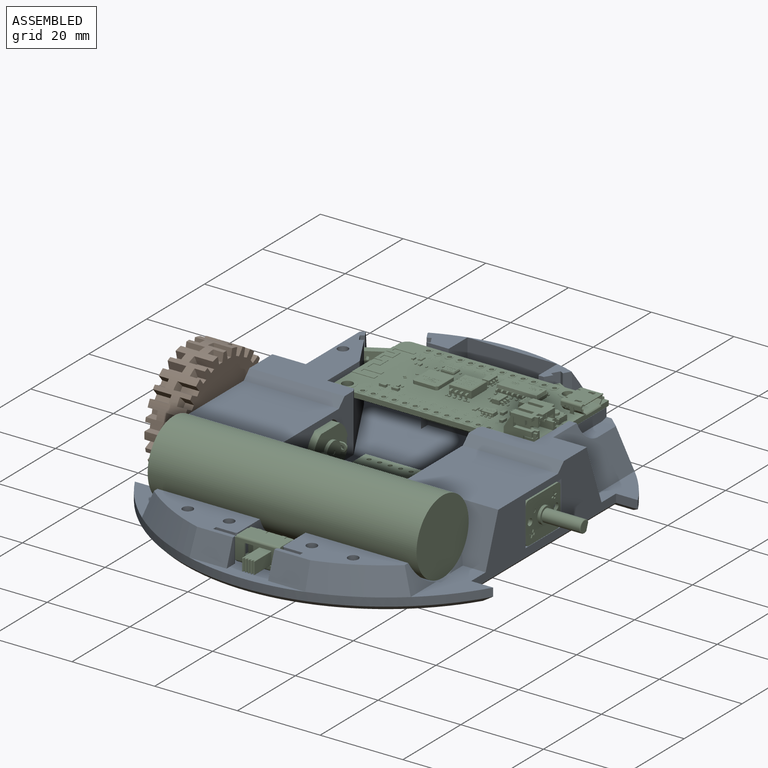
[diagram: assembled view]
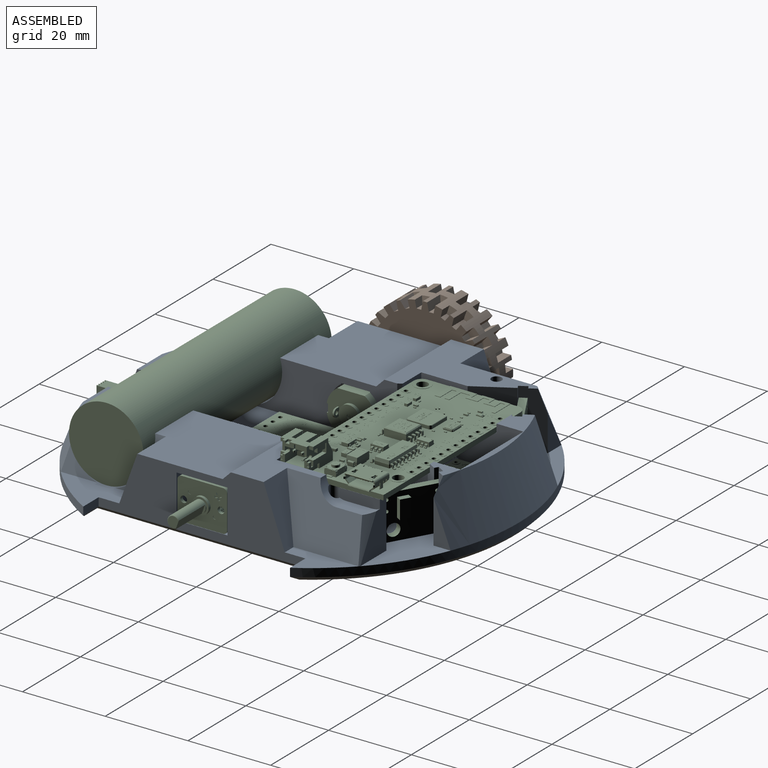
[diagram: assembled view, second angle]
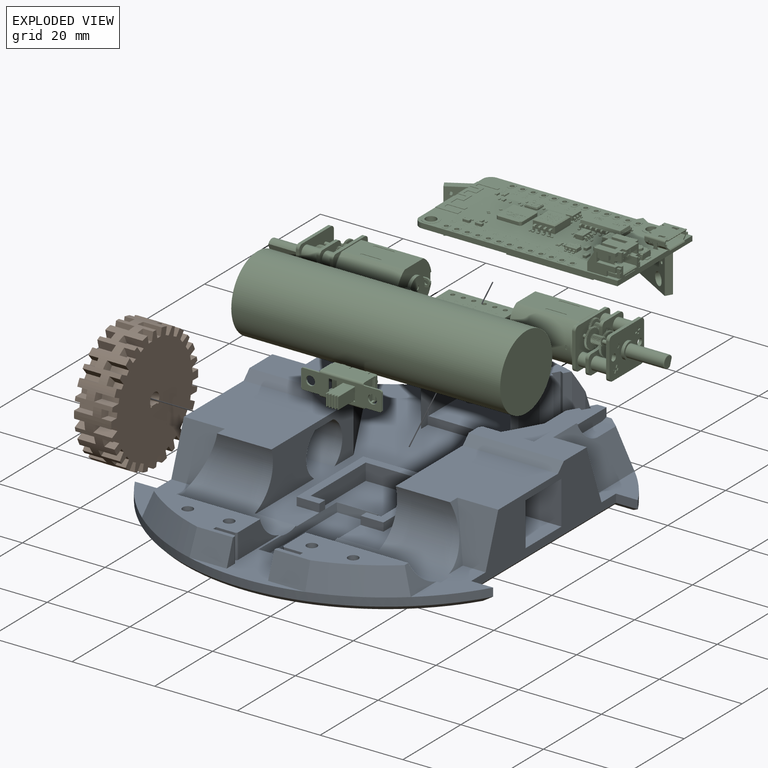
[diagram: exploded view]
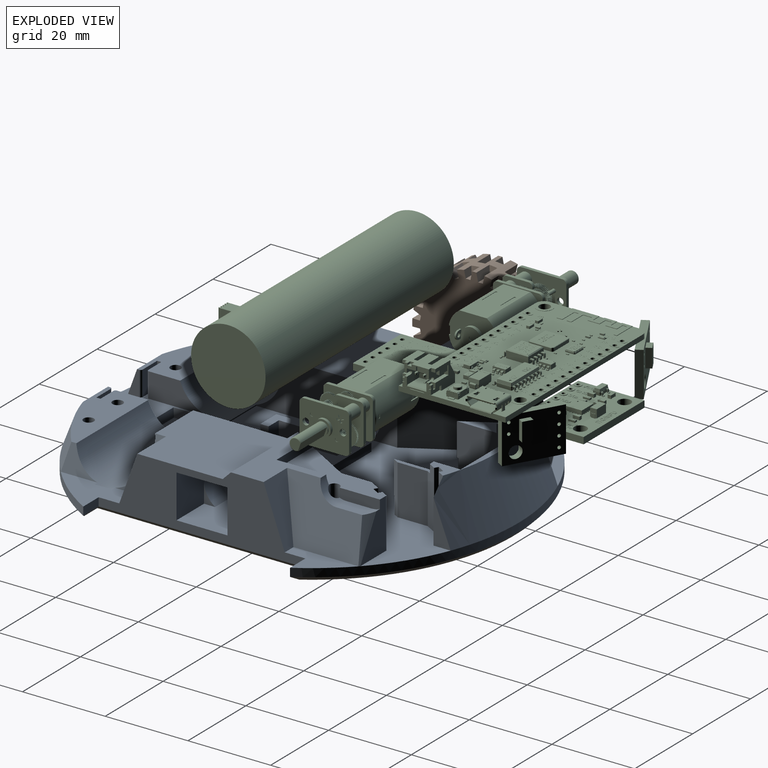
[diagram: exploded view, second angle]
FCSTD DOCUMENT  (FreeCAD 1.0R39319 (Git))
Label: Layout
License: All rights reserved
LicenseURL: https://en.wikipedia.org/wiki/All_rights_reserved
objects: Sketcher::SketchObject×21, PartDesign::Pocket×16, App::Link×10, PartDesign::Pad×5, App::Part×2, PartDesign::Body×2, PartDesign::Chamfer×2, PartDesign::PolarPattern×1, PartDesign::Mirrored×1
note: 117 computed .brp shape members not serialized (recipe doc carries the construction recipe); baked Part::Feature solids carry a one-line shape summary decoded from their .brp
EXTERNAL_REF file=../ReferenceParts/GYUL53L0X.FCStd obj=Part
EXTERNAL_REF file=../ReferenceParts/GY_521.FCStd obj=GY_521_MPU6050
EXTERNAL_REF file=../ReferenceParts/DRV8833.FCStd obj=Modulo_DRV8833_
EXTERNAL_REF file=../ReferenceParts/Lolin32Lite.FCStd obj=Lolin_32_Lite_Board_v45
EXTERNAL_REF file=../ReferenceParts/18650.FCStd obj=Part
EXTERNAL_REF file=../ReferenceParts/N20.FCStd obj=Part
EXTERNAL_REF file=../ReferenceParts/SS12F15 Switch.FCStd obj=SS12F15

FEATURE [App::Link] Link  label="GYUL53LOX"
  LinkPlacement = pos=(-20,35,8) rot=(-0.935113,-0.250563,0.250563;1.63783rad)
  LinkedObject = -> <external ../ReferenceParts/GYUL53L0X.FCStd>#Part
  Placement = pos=(-20,35,8) rot=(-0.935113,-0.250563,0.250563;1.63783rad)
FEATURE [App::Link] Link001  label="GYUL53LOX001"
  LinkPlacement = pos=(20,35,8) rot=(-0.935113,0.250563,-0.250563;1.63783rad)
  LinkedObject = -> <external ../ReferenceParts/GYUL53L0X.FCStd>#Part
  Placement = pos=(20,35,8) rot=(-0.935113,0.250563,-0.250563;1.63783rad)
FEATURE [Sketcher::SketchObject] Sketch  label="Layout001"
  ArcFitTolerance = 1e-06
  AttachmentSupport = -> [XY_Plane001]
  FullyConstrained = true
  MakeInternals = false
  MapMode = 5
  sketch-geometry (3):
    g0: Circle CenterX=0 CenterY=0 CenterZ=0 NormalX=0 NormalY=0 NormalZ=1 AngleXU=0 Radius=50
    g1: LineSegment StartX=0 StartY=0 StartZ=0 EndX=-25 EndY=43.3013 EndZ=0
    g2: LineSegment StartX=0 StartY=0 StartZ=0 EndX=25 EndY=43.3013 EndZ=0
  constraints (8):
    c: Coincident(g0,g-1)
    c: Diameter(g0) = 100
    c: Coincident(g1,g0)
    c: PointOnObject(g1,g0)
    c: Coincident(g2,g0)
    c: PointOnObject(g2,g0)
    c: Angle(g2,g-2) = 0.523599
    c: Angle(g-2,g1) = 0.523599
FEATURE [App::Link] Link002  label="GY_521_MPU6050"
  LinkPlacement = pos=(-1.68016e-07,35.5,4) rot=(0,0,0.999999;0rad)
  LinkedObject = -> <external ../ReferenceParts/GY_521.FCStd>#GY_521_MPU6050
  Placement = pos=(-1.68016e-07,35.5,4) rot=(0,0,0.999999;0rad)
FEATURE [App::Link] Link003  label="Modulo DRV8833 "
  LinkPlacement = pos=(-3.01321e-05,-4.5,4) rot=(0.707107,-0.707107,0;3.14159rad)
  LinkedObject = -> <external ../ReferenceParts/DRV8833.FCStd>#Modulo_DRV8833_
  Placement = pos=(-3.01321e-05,-4.5,4) rot=(0.707107,-0.707107,0;3.14159rad)
FEATURE [App::Link] Link004  label="Lolin 32 Lite Board v45"
  LinkPlacement = pos=(27.9544,10.9999,12) rot=(0,0,1;1.5708rad)
  LinkedObject = -> <external ../ReferenceParts/Lolin32Lite.FCStd>#Lolin_32_Lite_Board_v45
  Placement = pos=(27.9544,10.9999,12) rot=(0,0,1;1.5708rad)
FEATURE [App::Link] Link005  label="18650"
  LinkPlacement = pos=(32.5,-27,9) rot=(0,0,-1;1.5708rad)
  LinkedObject = -> <external ../ReferenceParts/18650.FCStd>#Part
  Placement = pos=(32.5,-27,9) rot=(0,0,-1;1.5708rad)
FEATURE [App::Link] Link006  label="N20"
  LinkPlacement = pos=(-38,-4.52995e-06,5) rot=(0,0,1;1.5708rad)
  LinkedObject = -> <external ../ReferenceParts/N20.FCStd>#Part
  Placement = pos=(-38,-4.52995e-06,5) rot=(0,0,1;1.5708rad)
FEATURE [App::Link] Link007  label="N021"
  LinkPlacement = pos=(38,-4.52995e-06,5) rot=(0,0,-1;1.5708rad)
  LinkedObject = -> <external ../ReferenceParts/N20.FCStd>#Part
  Placement = pos=(38,-4.52995e-06,5) rot=(0,0,-1;1.5708rad)
FEATURE [App::Link] Link008  label="SS12F15"
  LinkPlacement = pos=(-1.18017e-05,-44,3) rot=(1,0,0;1.5708rad)
  LinkedObject = -> <external ../ReferenceParts/SS12F15 Switch.FCStd>#SS12F15
  Placement = pos=(-1.18017e-05,-44,3) rot=(1,0,0;1.5708rad)
FEATURE [App::Part] Part  label="Layout"
  Group = -> [Link,Link001,Link002,Link003,Link004,Link005,Link006,Link007,Link008]
  Origin = -> Origin
FEATURE [Sketcher::SketchObject] Sketch001
  ArcFitTolerance = 1e-06
  AttachmentSupport = -> [XY_Plane001]
  FullyConstrained = true
  MakeInternals = false
  MapMode = 5
  sketch-geometry (1):
    g0: Circle CenterX=0 CenterY=0 CenterZ=0 NormalX=0 NormalY=0 NormalZ=1 AngleXU=0 Radius=50
  constraints (2):
    c: Coincident(g0,g-1)
    c: Diameter(g0) = 100
FEATURE [PartDesign::Pad] Pad
  Direction = (0,0,1)
  Length = 0
  Length2 = 3
  Profile = -> Sketch001
  ReferenceAxis = -> Sketch001 [N_Axis]
  Refine = true
  Suppressed = false
  Type = 4
FEATURE [Sketcher::SketchObject] Sketch002
  ArcFitTolerance = 1e-06
  AttachmentSupport = -> [XY_Plane001]
  FullyConstrained = true
  MakeInternals = false
  MapMode = 5
  sketch-geometry (15):
    g0: LineSegment StartX=-50 StartY=20 StartZ=0 EndX=-50 EndY=-20 EndZ=0
    g1: LineSegment StartX=50 StartY=-20 StartZ=0 EndX=50 EndY=20 EndZ=0
    g2: LineSegment StartX=-50 StartY=-20 StartZ=0 EndX=-32.5 EndY=-20 EndZ=0
    g3: LineSegment StartX=-32.5 StartY=-20 StartZ=0 EndX=-32.5 EndY=-37.9967 EndZ=0
    g4: LineSegment StartX=32.5 StartY=-37.9967 StartZ=0 EndX=32.5 EndY=-20 EndZ=0
    g5: LineSegment StartX=32.5 StartY=-20 StartZ=0 EndX=50 EndY=-20 EndZ=0
    g6: Circle [constr] CenterX=0 CenterY=0 CenterZ=0 NormalX=0 NormalY=0 NormalZ=1 AngleXU=0 Radius=50
    g7: ArcOfCircle CenterX=0 CenterY=0 CenterZ=0 NormalX=0 NormalY=0 NormalZ=1 AngleXU=0 Radius=50 StartAngle=4.0048 EndAngle=4.42859
    g8: ArcOfCircle CenterX=0 CenterY=0 CenterZ=0 NormalX=0 NormalY=0 NormalZ=1 AngleXU=0 Radius=50 StartAngle=4.99618 EndAngle=5.41997
    g9: LineSegment StartX=-14 StartY=-48 StartZ=0 EndX=14 EndY=-48 EndZ=0
    g10: LineSegment StartX=-50 StartY=20 StartZ=0 EndX=-35 EndY=20 EndZ=0
    g11: LineSegment StartX=-35 StartY=20 StartZ=0 EndX=-35 EndY=35.7071 EndZ=0
    g12: LineSegment StartX=50 StartY=20 StartZ=0 EndX=35 EndY=20 EndZ=0
    g13: LineSegment StartX=35 StartY=20 StartZ=0 EndX=35 EndY=35.7071 EndZ=0
    g14: ArcOfCircle CenterX=0 CenterY=0 CenterZ=0 NormalX=0 NormalY=0 NormalZ=1 AngleXU=0 Radius=50 StartAngle=0.795399 EndAngle=2.34619
  constraints (44):
    c: Vertical(g0)
    c: Vertical(g1)
    c: DistanceY(g1,g1) = 40
    c: Distance(g1,g-1) = 20
    c: DistanceX(g0,g1) = 100
    c: DistanceX(g-1,g1) = 50
    c: Coincident(g2,g0)
    c: Horizontal(g2)
    c: Coincident(g3,g2)
    c: Vertical(g3)
    c: Vertical(g4)
    c: Coincident(g5,g4)
    c: Coincident(g5,g1)
    c: Horizontal(g5)
    c: Horizontal(g2,g4)
    c: Equal(g5,g2)
    c: DistanceX(g3,g4) = 65
    c: Horizontal(g4,g3)
    c: Coincident(g6,g-1)
    c: Diameter(g6) = 100
    c: PointOnObject(g3,g6)
    c: Coincident(g7,g6)
    c: Coincident(g7,g3)
    c: Coincident(g8,g6)
    c: Coincident(g8,g4)
    c: Coincident(g9,g7)
    c: Coincident(g9,g8)
    c: Horizontal(g9)
    c: DistanceY(g8,g-1) = 48
    c: Coincident(g10,g0)
    c: Horizontal(g10)
    c: Coincident(g11,g10)
    c: PointOnObject(g11,g6)
    c: Coincident(g12,g1)
    c: Horizontal(g12)
    c: Coincident(g13,g12)
    c: Coincident(g14,g6)
    c: Coincident(g14,g11)
    c: Coincident(g14,g13)
    c: Horizontal(g13,g11)
    c: Vertical(g11)
    c: Vertical(g13)
    c: Horizontal(g10,g12)
    c: DistanceX(g11,g13) = 70
FEATURE [Sketcher::SketchObject] Sketch003
  ArcFitTolerance = 1e-06
  AttachmentSupport = -> [YZ_Plane002]
  FullyConstrained = true
  MakeInternals = false
  MapMode = 5
  Placement = pos=(0,0,0) rot=(0.57735,0.57735,0.57735;2.0944rad)
  sketch-geometry (5):
    g0: Circle CenterX=0 CenterY=0 CenterZ=0 NormalX=0 NormalY=0 NormalZ=1 AngleXU=0 Radius=15
    g1: ArcOfCircle CenterX=0 CenterY=0 CenterZ=0 NormalX=0 NormalY=0 NormalZ=1 AngleXU=0 Radius=1.6 StartAngle=5.68155 EndAngle=10.0264
    g2: ArcOfCircle CenterX=-1.1619 CenterY=-1.1 CenterZ=0 NormalX=0 NormalY=0 NormalZ=1 AngleXU=0 Radius=0.25 StartAngle=2.25063 EndAngle=6.28319
    g3: ArcOfCircle CenterX=1.1619 CenterY=-1.1 CenterZ=0 NormalX=0 NormalY=0 NormalZ=1 AngleXU=0 Radius=0.25 StartAngle=3.14159 EndAngle=7.17415
    g4: LineSegment StartX=-0.911895 StartY=-1.1 StartZ=0 EndX=0.911895 EndY=-1.1 EndZ=0
  constraints (16):
    c: Coincident(g0,g-1)
    c: Diameter(g0) = 30
    c: Coincident(g1,g0)
    c: Coincident(g2,g1)
    c: Coincident(g3,g1)
    c: Coincident(g4,g2)
    c: Coincident(g4,g3)
    c: Horizontal(g4)
    c: Radius(g1) = 1.6
    c: Equal(g3,g2)
    c: Perpendicular(g3,g4)
    c: Perpendicular(g2,g4)
    c: Radius(g3) = 0.25
    c: Horizontal(g1,g1)
    c: PointOnObject(g3,g1)
    c: Distance(g-1,g4) = 1.1
FEATURE [PartDesign::Pad] Pad001
  Direction = (1,0,0)
  Length = 9
  Length2 = 10
  Placement = pos=(0,0,0) rot=(1,1,1;2.0944rad)
  Profile = -> Sketch003
  ReferenceAxis = -> Sketch003 [N_Axis]
  Refine = true
  Suppressed = false
  Type = 0
FEATURE [Sketcher::SketchObject] Sketch004
  ArcFitTolerance = 1e-06
  AttachmentOffset = pos=(-0.5,0,15) rot=(0,0,1;0rad)
  AttachmentSupport = -> [XY_Plane002]
  FullyConstrained = true
  MakeInternals = false
  MapMode = 5
  Placement = pos=(-0.5,0,15) rot=(0,0,1;0rad)
  sketch-geometry (16):
    g0: LineSegment StartX=0 StartY=-0.5 StartZ=0 EndX=0 EndY=-2.5 EndZ=0
    g1: LineSegment StartX=0 StartY=-2.5 StartZ=0 EndX=5 EndY=-2.5 EndZ=0
    g2: LineSegment StartX=5 StartY=-2.5 StartZ=0 EndX=5 EndY=-0.5 EndZ=0
    g3: LineSegment StartX=5 StartY=-0.5 StartZ=0 EndX=0 EndY=-0.5 EndZ=0
    g4: LineSegment StartX=10 StartY=0.5 StartZ=0 EndX=10 EndY=2.5 EndZ=0
    g5: LineSegment StartX=10 StartY=2.5 StartZ=0 EndX=5 EndY=2.5 EndZ=0
    g6: LineSegment StartX=5 StartY=2.5 StartZ=0 EndX=5 EndY=0.5 EndZ=0
    g7: LineSegment StartX=5 StartY=0.5 StartZ=0 EndX=10 EndY=0.5 EndZ=0
    g8: LineSegment StartX=0 StartY=2.5 StartZ=0 EndX=0 EndY=0.5 EndZ=0
    g9: LineSegment StartX=0 StartY=0.5 StartZ=0 EndX=3 EndY=0.5 EndZ=0
    g10: LineSegment StartX=3 StartY=0.5 StartZ=0 EndX=3 EndY=2.5 EndZ=0
    g11: LineSegment StartX=3 StartY=2.5 StartZ=0 EndX=0 EndY=2.5 EndZ=0
    g12: LineSegment StartX=7 StartY=-0.5 StartZ=0 EndX=7 EndY=-2.5 EndZ=0
    g13: LineSegment StartX=7 StartY=-2.5 StartZ=0 EndX=10 EndY=-2.5 EndZ=0
    g14: LineSegment StartX=10 StartY=-2.5 StartZ=0 EndX=10 EndY=-0.5 EndZ=0
    g15: LineSegment StartX=10 StartY=-0.5 StartZ=0 EndX=7 EndY=-0.5 EndZ=0
  constraints (48):
    c: Coincident(g0,g1)
    c: Coincident(g1,g2)
    c: Coincident(g2,g3)
    c: Coincident(g3,g0)
    c: Vertical(g0)
    c: Vertical(g2)
    c: Horizontal(g1)
    c: Horizontal(g3)
    c: PointOnObject(g0,g-2)
    c: Coincident(g4,g5)
    c: Coincident(g5,g6)
    c: Coincident(g6,g7)
    c: Coincident(g7,g4)
    c: Vertical(g4)
    c: Vertical(g6)
    c: Horizontal(g5)
    c: Horizontal(g7)
    c: Distance(g4,g-1) = 0.5
    c: Distance(g2,g-1) = 0.5
    c: DistanceX(g-1,g4) = 10
    c: DistanceX(g5,g5) = 5
    c: Equal(g5,g1)
    c: Equal(g2,g6)
    c: Distance(g2,g2) = 2
    c: Coincident(g8,g9)
    c: Coincident(g9,g10)
    c: Coincident(g10,g11)
    c: Coincident(g11,g8)
    c: Vertical(g8)
    c: Vertical(g10)
    c: Horizontal(g9)
    c: Horizontal(g11)
    c: PointOnObject(g8,g-2)
    c: Coincident(g12,g13)
    c: Coincident(g13,g14)
    c: Coincident(g14,g15)
    c: Coincident(g15,g12)
    c: Vertical(g12)
    c: Vertical(g14)
    c: Horizontal(g13)
    c: Horizontal(g15)
    c: Vertical(g14,g4)
    c: Horizontal(g12,g2)
    c: Horizontal(g12,g1)
    c: Horizontal(g10,g5)
    c: Horizontal(g9,g6)
    c: Equal(g9,g15)
    c: DistanceX(g10,g5) = 2
FEATURE [PartDesign::Pocket] Pocket
  BaseFeature = -> Pad001
  Direction = (0,0,-1)
  Length = 2
  Length2 = 5
  Placement = pos=(0,0,0) rot=(1,1,1;2.0944rad)
  Profile = -> Sketch004
  ReferenceAxis = -> Sketch004 [N_Axis]
  Refine = true
  Suppressed = false
  TaperAngle = -12
  Type = 0
FEATURE [PartDesign::PolarPattern] PolarPattern
  Angle = 360
  Axis = -> X_Axis002
  BaseFeature = -> Pocket
  Mode = 0
  Occurrences = 14
  Offset = 120
  Originals = -> [Pocket]
  Placement = pos=(0,0,0) rot=(1,1,1;2.0944rad)
  Refine = true
  Suppressed = false
  TransformMode = 0
FEATURE [PartDesign::Body] Body001  label="Wheel"
  AllowCompound = false
  Group = -> [Sketch003,Pad001,Sketch004,Pocket,PolarPattern]
  Origin = -> Origin002
  Placement = pos=(39,0,5) rot=(0,0,1;0rad)
  Tip = -> PolarPattern
FEATURE [App::Part] Part001  label="Wheel001"
  Group = -> [Body001]
  Origin = -> Origin003
FEATURE [App::Link] Link009  label="Wheel002"
  LinkPlacement = pos=(0,0,0) rot=(0,0,1;3.14159rad)
  LinkedObject = -> Part001
  Placement = pos=(0,0,0) rot=(0,0,1;3.14159rad)
FEATURE [PartDesign::Pad] Pad002  label="WheelMount"
  BaseFeature = -> Pad
  Direction = (0,0,1)
  Length = 14
  Length2 = 10
  Profile = -> Sketch002
  ReferenceAxis = -> Sketch002 [N_Axis]
  Refine = true
  Suppressed = false
  TaperAngle = -20
  Type = 0
FEATURE [Sketcher::SketchObject] Sketch005
  ArcFitTolerance = 1e-06
  AttachmentSupport = -> [XY_Plane001]
  FullyConstrained = true
  MakeInternals = false
  MapMode = 5
  sketch-geometry (4):
    g0: LineSegment StartX=-60 StartY=25 StartZ=0 EndX=-60 EndY=-25 EndZ=0
    g1: LineSegment StartX=-60 StartY=-25 StartZ=0 EndX=-38 EndY=-25 EndZ=0
    g2: LineSegment StartX=-38 StartY=-25 StartZ=0 EndX=-38 EndY=25 EndZ=0
    g3: LineSegment StartX=-38 StartY=25 StartZ=0 EndX=-60 EndY=25 EndZ=0
  constraints (12):
    c: Coincident(g0,g1)
    c: Coincident(g1,g2)
    c: Coincident(g2,g3)
    c: Coincident(g3,g0)
    c: Vertical(g0)
    c: Vertical(g2)
    c: Horizontal(g1)
    c: Horizontal(g3)
    c: DistanceX(g1,g-1) = 38
    c: DistanceY(g0,g0) = 50
    c: DistanceY(g-1,g0) = 25
    c: DistanceX(g0,g-1) = 60
FEATURE [PartDesign::Pocket] Pocket001  label="WheelCutout"
  BaseFeature = -> Pad002
  Direction = (0,0,-1)
  Length = 5
  Length2 = 5
  Midplane = true
  Profile = -> Sketch005
  ReferenceAxis = -> Sketch005 [N_Axis]
  Refine = true
  Suppressed = false
  Type = 1
FEATURE [Sketcher::SketchObject] Sketch006
  ArcFitTolerance = 1e-06
  AttachmentSupport = -> [Pocket001]
  FullyConstrained = true
  MakeInternals = false
  MapMode = 5
  Placement = pos=(-38,0,0) rot=(0.57735,-0.57735,-0.57735;2.0944rad)
  sketch-geometry (4):
    g0: LineSegment StartX=-6.175 StartY=10.45 StartZ=0 EndX=-6.175 EndY=0 EndZ=0
    g1: LineSegment StartX=-6.175 StartY=0 StartZ=0 EndX=6.175 EndY=0 EndZ=0
    g2: LineSegment StartX=6.175 StartY=0 StartZ=0 EndX=6.175 EndY=10.45 EndZ=0
    g3: LineSegment StartX=6.175 StartY=10.45 StartZ=0 EndX=-6.175 EndY=10.45 EndZ=0
  constraints (11):
    c: Coincident(g0,g1)
    c: Coincident(g1,g2)
    c: Coincident(g2,g3)
    c: Coincident(g3,g0)
    c: Vertical(g0)
    c: Vertical(g2)
    c: Horizontal(g1)
    c: PointOnObject(g1,g-1)
    c: DistanceY(g2,g2) = 10.45
    c: DistanceX(g3,g3) = 12.35
    c: Symmetric(g2,g0,g-2)
FEATURE [PartDesign::Pocket] Pocket002  label="GearboxCutout"
  BaseFeature = -> Pocket001
  Direction = (1,0,0)
  Length = 9.5
  Length2 = 5
  Profile = -> Sketch006
  ReferenceAxis = -> Sketch006 [N_Axis]
  Refine = true
  Suppressed = false
  Type = 0
FEATURE [Sketcher::SketchObject] Sketch007
  ArcFitTolerance = 1e-06
  AttachmentSupport = -> [Pocket002]
  FullyConstrained = true
  MakeInternals = false
  MapMode = 5
  Placement = pos=(-28.5,0,0) rot=(0.57735,-0.57735,-0.57735;2.0944rad)
  sketch-geometry (6):
    g0: ArcOfCircle CenterX=0 CenterY=5.125 CenterZ=0 NormalX=0 NormalY=0 NormalZ=1 AngleXU=0 Radius=6.2 StartAngle=2.16853 EndAngle=4.11465
    g1: ArcOfCircle CenterX=0 CenterY=5.125 CenterZ=0 NormalX=0 NormalY=0 NormalZ=1 AngleXU=0 Radius=6.2 StartAngle=5.31012 EndAngle=7.25625
    g2: LineSegment StartX=-3.48918 StartY=0 StartZ=0 EndX=3.48918 EndY=0 EndZ=0
    g3: LineSegment StartX=-3.48918 StartY=10.25 StartZ=0 EndX=-3.48918 EndY=10.45 EndZ=0
    g4: LineSegment StartX=-3.48918 StartY=10.45 StartZ=0 EndX=3.48918 EndY=10.45 EndZ=0
    g5: LineSegment StartX=3.48918 StartY=10.45 StartZ=0 EndX=3.48918 EndY=10.25 EndZ=0
  constraints (19):
    c: Coincident(g2,g0)
    c: Coincident(g2,g1)
    c: Horizontal(g2)
    c: Equal(g0,g1)
    c: Coincident(g3,g0)
    c: Coincident(g4,g3)
    c: Horizontal(g4)
    c: Coincident(g5,g4)
    c: Coincident(g5,g1)
    c: Vertical(g5)
    c: Vertical(g3)
    c: Equal(g3,g5)
    c: Distance(g5,g5) = 0.2
    c: PointOnObject(g1,g-1)
    c: Radius(g1) = 6.2
    c: Coincident(g0,g1)
    c: Vertical(g1,g1)
    c: PointOnObject(g0,g-2)
    c: DistanceY(g-1,g0) = 5.125
FEATURE [PartDesign::Pocket] Pocket003  label="MotorCutout"
  BaseFeature = -> Pocket002
  Direction = (1,0,0)
  Length = 15
  Length2 = 5
  Profile = -> Sketch007
  ReferenceAxis = -> Sketch007 [N_Axis]
  Refine = true
  Suppressed = false
  Type = 0
FEATURE [PartDesign::Mirrored] Mirrored
  BaseFeature = -> Pocket003
  MirrorPlane = -> Sketch005 [V_Axis]
  Originals = -> [Pocket001,Pocket002,Pocket003]
  Refine = true
  Suppressed = false
  TransformMode = 0
FEATURE [Sketcher::SketchObject] Sketch008
  ArcFitTolerance = 1e-06
  AttachmentSupport = -> [YZ_Plane001]
  FullyConstrained = true
  MakeInternals = false
  MapMode = 5
  Placement = pos=(0,0,0) rot=(0.57735,0.57735,0.57735;2.0944rad)
  sketch-geometry (6):
    g0: Circle [constr] CenterX=-27 CenterY=9 CenterZ=0 NormalX=0 NormalY=0 NormalZ=1 AngleXU=0 Radius=9.25
    g1: ArcOfCircle CenterX=-27 CenterY=9 CenterZ=0 NormalX=0 NormalY=0 NormalZ=1 AngleXU=0 Radius=9.25 StartAngle=3.47189 EndAngle=7.85398
    g2: LineSegment StartX=-27 StartY=18.25 StartZ=0 EndX=-27 EndY=36 EndZ=0
    g3: LineSegment StartX=-27 StartY=36 StartZ=0 EndX=-57 EndY=36 EndZ=0
    g4: LineSegment StartX=-57 StartY=36 StartZ=0 EndX=-57 EndY=6 EndZ=0
    g5: LineSegment StartX=-57 StartY=6 StartZ=0 EndX=-35.75 EndY=6 EndZ=0
  constraints (18):
    c: Diameter(g0) = 18.5
    c: DistanceY(g-1,g0) = 9
    c: DistanceX(g0,g-1) = 27
    c: Coincident(g1,g0)
    c: PointOnObject(g1,g0)
    c: Coincident(g1,g2)
    c: Coincident(g2,g3)
    c: Horizontal(g3)
    c: Coincident(g3,g4)
    c: Vertical(g4)
    c: Coincident(g4,g5)
    c: Coincident(g5,g1)
    c: Horizontal(g5)
    c: DistanceY(g-1,g4) = 6
    c: DistanceY(g4,g4) = 30
    c: DistanceX(g3,g3) = 30
    c: Vertical(g1,g0)
    c: Vertical(g2)
FEATURE [PartDesign::Pocket] Pocket004  label="BatteryCutout"
  BaseFeature = -> Mirrored
  Direction = (-1,0,0)
  Length = 67
  Length2 = 5
  Midplane = true
  Profile = -> Sketch008
  ReferenceAxis = -> Sketch008 [N_Axis]
  Refine = true
  Suppressed = false
  Type = 0
FEATURE [Sketcher::SketchObject] Sketch009
  ArcFitTolerance = 1e-06
  AttachmentSupport = -> [Pocket004]
  FullyConstrained = true
  MakeInternals = false
  MapMode = 5
  Placement = pos=(0,0,6) rot=(0,0,1;0rad)
  sketch-geometry (20):
    g0: LineSegment StartX=-5 StartY=-54.8 StartZ=0 EndX=5 EndY=-54.8 EndZ=0
    g1: LineSegment StartX=5 StartY=-54.8 StartZ=0 EndX=5 EndY=-45.3 EndZ=0
    g2: LineSegment StartX=5.5 StartY=-44.8 StartZ=0 EndX=10.5 EndY=-44.8 EndZ=0
    g3: LineSegment StartX=10.5 StartY=-44.8 StartZ=0 EndX=10.5 EndY=-43.8 EndZ=0
    g4: LineSegment StartX=10.5 StartY=-43.8 StartZ=0 EndX=6 EndY=-43.8 EndZ=0
    g5: LineSegment StartX=5.5 StartY=-43.3 StartZ=0 EndX=5.5 EndY=-28.8 EndZ=0
    g6: LineSegment StartX=5.5 StartY=-28.8 StartZ=0 EndX=-5.5 EndY=-28.8 EndZ=0
    g7: LineSegment StartX=-5.5 StartY=-28.8 StartZ=0 EndX=-5.5 EndY=-43.3 EndZ=0
    g8: LineSegment StartX=-6 StartY=-43.8 StartZ=0 EndX=-10.5 EndY=-43.8 EndZ=0
    g9: LineSegment StartX=-10.5 StartY=-43.8 StartZ=0 EndX=-10.5 EndY=-44.8 EndZ=0
    g10: LineSegment StartX=-10.5 StartY=-44.8 StartZ=0 EndX=-5.5 EndY=-44.8 EndZ=0
    g11: LineSegment StartX=-5 StartY=-45.3 StartZ=0 EndX=-5 EndY=-54.8 EndZ=0
    g12: ArcOfCircle CenterX=-6 CenterY=-43.3 CenterZ=0 NormalX=0 NormalY=0 NormalZ=1 AngleXU=0 Radius=0.5 StartAngle=4.71239 EndAngle=6.28319
    g13: GeomPoint [constr] X=-5.5 Y=-43.8 Z=0
    g14: ArcOfCircle CenterX=6 CenterY=-43.3 CenterZ=0 NormalX=0 NormalY=0 NormalZ=1 AngleXU=0 Radius=0.5 StartAngle=3.14159 EndAngle=4.71239
    g15: GeomPoint [constr] X=5.5 Y=-43.8 Z=0
    g16: ArcOfCircle CenterX=-5.5 CenterY=-45.3 CenterZ=0 NormalX=0 NormalY=0 NormalZ=1 AngleXU=0 Radius=0.5 StartAngle=-5.3e-15 EndAngle=1.5708
    g17: GeomPoint [constr] X=-5 Y=-44.8 Z=0
    g18: ArcOfCircle CenterX=5.5 CenterY=-45.3 CenterZ=0 NormalX=0 NormalY=0 NormalZ=1 AngleXU=0 Radius=0.5 StartAngle=1.5708 EndAngle=3.14159
    g19: GeomPoint [constr] X=5 Y=-44.8 Z=0
  constraints (51):
    c: Coincident(g0,g1)
    c: Vertical(g1)
    c: Horizontal(g2)
    c: Coincident(g2,g3)
    c: Vertical(g3)
    c: Coincident(g3,g4)
    c: Horizontal(g4)
    c: Vertical(g5)
    c: Coincident(g5,g6)
    c: Horizontal(g6)
    c: Coincident(g6,g7)
    c: Horizontal(g8)
    c: Coincident(g8,g9)
    c: Coincident(g9,g10)
    c: Coincident(g11,g0)
    c: Vertical(g11)
    c: Vertical(g9)
    c: Vertical(g7)
    c: DistanceX(g13,g-1) = 5.5
    c: DistanceX(g-1,g15) = 5.5
    c: DistanceX(g8,g3) = 21
    c: Horizontal(g13,g15)
    c: DistanceY(g3,g-1) = 43.8
    c: DistanceY(g3,g3) = 1
    c: Horizontal(g10)
    c: DistanceX(g0,g0) = 10
    c: DistanceY(g1,g19) = 10
    c: Horizontal(g0)
    c: DistanceY(g15,g5) = 15
    c: PointOnObject(g13,g7)
    c: PointOnObject(g13,g8)
    c: Tangent(g7,g12) = 1.5708
    c: Tangent(g8,g12) = 1.5708
    c: PointOnObject(g15,g4)
    c: PointOnObject(g15,g5)
    c: Tangent(g4,g14) = 1.5708
    c: Tangent(g5,g14) = 1.5708
    c: PointOnObject(g17,g10)
    c: PointOnObject(g17,g11)
    c: Tangent(g10,g16) = 1.5708
    c: Tangent(g11,g16) = 1.5708
    c: PointOnObject(g19,g1)
    c: PointOnObject(g19,g2)
    c: Tangent(g1,g18) = 1.5708
    c: Tangent(g2,g18) = 1.5708
    c: Equal(g18,g14)
    c: Equal(g14,g12)
    c: Equal(g12,g16)
    c: Radius(g12) = 0.5
    c: Symmetric(g17,g19,g-2)
    c: Equal(g4,g8)
FEATURE [PartDesign::Pocket] Pocket005  label="SwitchCutout"
  BaseFeature = -> Pocket004
  Direction = (0,0,-1)
  Length = 6
  Length2 = 5
  Profile = -> Sketch009
  ReferenceAxis = -> Sketch009 [N_Axis]
  Refine = true
  Suppressed = false
  Type = 0
FEATURE [Sketcher::SketchObject] Sketch010
  ArcFitTolerance = 1e-06
  AttachmentSupport = -> [XY_Plane001]
  FullyConstrained = true
  MakeInternals = false
  MapMode = 5
  sketch-geometry (4):
    g0: LineSegment StartX=-15 StartY=22 StartZ=0 EndX=-15 EndY=-24 EndZ=0
    g1: LineSegment StartX=-15 StartY=-24 StartZ=0 EndX=15 EndY=-24 EndZ=0
    g2: LineSegment StartX=15 StartY=-24 StartZ=0 EndX=15 EndY=22 EndZ=0
    g3: LineSegment StartX=15 StartY=22 StartZ=0 EndX=-15 EndY=22 EndZ=0
  constraints (12):
    c: Coincident(g0,g1)
    c: Coincident(g1,g2)
    c: Coincident(g2,g3)
    c: Coincident(g3,g0)
    c: Vertical(g0)
    c: Vertical(g2)
    c: Horizontal(g1)
    c: Horizontal(g3)
    c: DistanceX(g3,g3) = 30
    c: DistanceX(g-1,g2) = 15
    c: DistanceY(g-1,g2) = 22
    c: DistanceY(g1,g-1) = 24
FEATURE [PartDesign::Pocket] Pocket006  label="MainWiringAreaCutout"
  BaseFeature = -> Pocket005
  Direction = (0,0,-1)
  Length = 5
  Length2 = 5
  Profile = -> Sketch010
  ReferenceAxis = -> Sketch010 [N_Axis]
  Refine = true
  Reversed = true
  Suppressed = false
  Type = 1
FEATURE [Sketcher::SketchObject] Sketch011
  ArcFitTolerance = 1e-06
  AttachmentSupport = -> [XY_Plane001]
  FullyConstrained = true
  MakeInternals = false
  MapMode = 5
  sketch-geometry (48):
    g0: LineSegment [constr] StartX=-28.8819 StartY=32.125 StartZ=0 EndX=-16.5411 EndY=39.25 EndZ=0
    g1: LineSegment [constr] StartX=-16.5411 StartY=39.25 StartZ=0 EndX=-15.4911 EndY=37.4313 EndZ=0
    g2: LineSegment [constr] StartX=-15.4911 StartY=37.4313 StartZ=0 EndX=-27.8319 EndY=30.3063 EndZ=0
    g3: LineSegment [constr] StartX=-27.8319 StartY=30.3063 StartZ=0 EndX=-28.8819 EndY=32.125 EndZ=0
    g4: LineSegment [constr] StartX=13.3801 StartY=41.075 StartZ=0 EndX=12.3301 EndY=39.2563 EndZ=0
    g5: LineSegment [constr] StartX=12.3301 StartY=39.2563 StartZ=0 EndX=24.671 EndY=32.1313 EndZ=0
    g6: LineSegment [constr] StartX=24.671 StartY=32.1313 StartZ=0 EndX=25.721 EndY=33.95 EndZ=0
    g7: LineSegment [constr] StartX=25.721 StartY=33.95 StartZ=0 EndX=13.3801 EndY=41.075 EndZ=0
    g8: GeomPoint [constr] X=21.131 Y=36.6 Z=0
    g9: LineSegment [constr] StartX=0 StartY=0 StartZ=0 EndX=21.131 EndY=36.6 EndZ=0
    g10: LineSegment [constr] StartX=-21.131 StartY=36.6 StartZ=0 EndX=0 EndY=0 EndZ=0
    g11: LineSegment StartX=-28.0159 StartY=32.625 StartZ=0 EndX=-29.9645 EndY=36 EndZ=0
    g12: LineSegment StartX=-29.9645 StartY=36 StartZ=0 EndX=-50 EndY=36 EndZ=0
    g13: LineSegment StartX=-50 StartY=36 StartZ=0 EndX=-50 EndY=50 EndZ=0
    g14: LineSegment StartX=-50 StartY=50 StartZ=0 EndX=-18.5 EndY=50 EndZ=0
    g15: LineSegment StartX=-17.4071 StartY=38.75 StartZ=0 EndX=-16.5411 EndY=39.25 EndZ=0
    g16: LineSegment StartX=-16.5411 StartY=39.25 StartZ=0 EndX=-15.4911 EndY=37.4313 EndZ=0
    g17: LineSegment StartX=-15.4911 StartY=37.4313 StartZ=0 EndX=-16.3571 EndY=36.9313 EndZ=0
    g18: LineSegment StartX=-16.3571 StartY=36.9313 StartZ=0 EndX=-14.8571 EndY=34.3333 EndZ=0
    g19: LineSegment StartX=-25.4659 StartY=28.2083 StartZ=0 EndX=-26.9659 EndY=30.8063 EndZ=0
    g20: LineSegment StartX=-26.9659 StartY=30.8063 StartZ=0 EndX=-27.8319 EndY=30.3063 EndZ=0
    g21: LineSegment StartX=-27.8319 StartY=30.3063 StartZ=0 EndX=-28.8819 EndY=32.125 EndZ=0
    g22: LineSegment StartX=-28.8819 StartY=32.125 StartZ=0 EndX=-28.0159 EndY=32.625 EndZ=0
    g23: LineSegment StartX=18.5 StartY=50 StartZ=0 EndX=50 EndY=50 EndZ=0
    g24: LineSegment StartX=50 StartY=50 StartZ=0 EndX=50 EndY=36 EndZ=0
    g25: LineSegment StartX=24.8549 StartY=34.45 StartZ=0 EndX=25.721 EndY=33.95 EndZ=0
    g26: LineSegment StartX=25.721 StartY=33.95 StartZ=0 EndX=24.671 EndY=32.1313 EndZ=0
    g27: LineSegment StartX=24.671 StartY=32.1313 StartZ=0 EndX=23.8049 EndY=32.6313 EndZ=0
    g28: LineSegment StartX=23.8049 StartY=32.6313 StartZ=0 EndX=22.3049 EndY=30.0333 EndZ=0
    g29: LineSegment StartX=11.6961 StartY=36.1583 StartZ=0 EndX=13.1961 EndY=38.7563 EndZ=0
    g30: LineSegment StartX=13.1961 StartY=38.7563 StartZ=0 EndX=12.3301 EndY=39.2563 EndZ=0
    g31: LineSegment StartX=12.3301 StartY=39.2563 StartZ=0 EndX=13.3801 EndY=41.075 EndZ=0
    g32: LineSegment StartX=24.8549 StartY=34.45 StartZ=0 EndX=25.7498 EndY=36 EndZ=0
    g33: LineSegment StartX=25.7498 StartY=36 StartZ=0 EndX=50 EndY=36 EndZ=0
    g34: LineSegment StartX=-17.4071 StartY=38.75 StartZ=0 EndX=-18.5 EndY=40.6429 EndZ=0
    g35: LineSegment StartX=-18.5 StartY=50 StartZ=0 EndX=-18.5 EndY=40.6429 EndZ=0
    g36: LineSegment StartX=18.5 StartY=50 StartZ=0 EndX=18.5 EndY=42.3071 EndZ=0
    g37: LineSegment StartX=14.2461 StartY=40.575 StartZ=0 EndX=13.3801 EndY=41.075 EndZ=0
    g38: LineSegment StartX=14.2461 StartY=40.575 StartZ=0 EndX=15.2461 EndY=42.3071 EndZ=0
    g39: LineSegment StartX=15.2461 StartY=42.3071 StartZ=0 EndX=18.5 EndY=42.3071 EndZ=0
    g40: LineSegment StartX=-25.4659 StartY=28.2083 StartZ=0 EndX=-14.9534 EndY=10 EndZ=0
    g41: LineSegment StartX=-14.9534 StartY=10 StartZ=0 EndX=14.9534 EndY=10 EndZ=0
    g42: LineSegment StartX=14.9534 StartY=10 StartZ=0 EndX=22.3049 EndY=22.7333 EndZ=0
    g43: LineSegment StartX=22.3049 StartY=22.7333 StartZ=0 EndX=22.3049 EndY=30.0333 EndZ=0
    g44: LineSegment StartX=11.6961 StartY=36.1583 StartZ=0 EndX=11.6961 EndY=28.8583 EndZ=0
    g45: LineSegment StartX=11.6961 StartY=28.8583 StartZ=0 EndX=3.69504 EndY=15 EndZ=0
    g46: LineSegment StartX=3.69504 StartY=15 StartZ=0 EndX=-3.69504 EndY=15 EndZ=0
    g47: LineSegment StartX=-14.8571 StartY=34.3333 StartZ=0 EndX=-3.69504 EndY=15 EndZ=0
  constraints (132):
    c: Coincident(g0,g1)
    c: Coincident(g1,g2)
    c: Coincident(g2,g3)
    c: Coincident(g3,g0)
    c: Coincident(g4,g5)
    c: Coincident(g5,g6)
    c: Coincident(g6,g7)
    c: Coincident(g7,g4)
    c: Equal(g2,g0)
    c: Equal(g0,g5)
    c: Equal(g5,g7)
    c: Equal(g6,g4)
    c: Equal(g4,g1)
    c: Equal(g1,g3)
    c: Perpendicular(g2,g1)
    c: Perpendicular(g5,g6)
    c: Distance(g5,g5) = 14.25
    c: Distance(g6,g6) = 2.1
    c: PointOnObject(g8,g7)
    c: Distance(g8,g6) = 5.3
    c: Coincident(g9,g-1)
    c: Coincident(g9,g8)
    c: Perpendicular(g9,g7)
    c: Angle(g-1,g9) = 1.0472
    c: DistanceY(g-1,g8) = 36.6
    c: PointOnObject(g10,g0)
    c: Coincident(g10,g9)
    c: Distance(g10,g0) = 5.3
    c: Angle(g10,g-1) = 1.0472
    c: Horizontal(g10,g8)
    c: Perpendicular(g10,g0)
    c: PointOnObject(g11,g0)
    c: Coincident(g11,g12)
    c: Horizontal(g12)
    c: Coincident(g12,g13)
    c: Vertical(g13)
    c: Coincident(g13,g14)
    c: Horizontal(g14)
    c: PointOnObject(g15,g0)
    c: Coincident(g15,g0)
    c: Coincident(g15,g16)
    c: Coincident(g16,g1)
    c: Coincident(g16,g17)
    c: PointOnObject(g17,g2)
    c: Coincident(g17,g18)
    c: PointOnObject(g19,g2)
    c: Coincident(g19,g20)
    c: Coincident(g20,g2)
    c: Coincident(g20,g21)
    c: Coincident(g21,g0)
    c: Coincident(g21,g22)
    c: Coincident(g22,g11)
    c: Horizontal(g23)
    c: Coincident(g23,g24)
    c: PointOnObject(g25,g7)
    c: Coincident(g25,g6)
    c: Coincident(g25,g26)
    c: Coincident(g26,g5)
    c: Coincident(g26,g27)
    c: PointOnObject(g27,g5)
    c: Coincident(g27,g28)
    c: PointOnObject(g29,g5)
    c: Coincident(g29,g30)
    c: Coincident(g30,g4)
    c: Coincident(g30,g31)
    c: Coincident(g31,g4)
    c: Equal(g29,g28)
    c: Equal(g28,g18)
    c: Equal(g18,g19)
    c: Perpendicular(g30,g29)
    c: Perpendicular(g27,g28)
    c: Distance(g27,g27) = 1
    c: Coincident(g32,g25)
    c: Coincident(g33,g32)
    c: Coincident(g33,g24)
    c: Horizontal(g33)
    c: Parallel(g32,g28)
    c: Equal(g25,g27)
    c: Distance(g29,g29) = 3
    c: Equal(g17,g15)
    c: Equal(g15,g22)
    c: Equal(g22,g20)
    c: Perpendicular(g17,g18)
    c: Perpendicular(g2,g19)
    c: Vertical(g24)
    c: Equal(g23,g14)
    c: DistanceX(g13,g23) = 100
    c: DistanceY(g-1,g23) = 50
    c: Equal(g24,g13)
    c: Coincident(g34,g15)
    c: Coincident(g35,g14)
    c: Coincident(g35,g34)
    c: Vertical(g35)
    c: Symmetric(g23,g14,g-2)
    c: DistanceX(g14,g23) = 37
    c: DistanceY(g-1,g24) = 36
    c: Equal(g30,g27)
    c: Equal(g30,g17)
    c: Perpendicular(g15,g34)
    c: Coincident(g36,g23)
    c: Vertical(g36)
    c: PointOnObject(g37,g7)
    c: Coincident(g37,g4)
    c: Equal(g37,g30)
    c: Coincident(g38,g37)
    c: Coincident(g39,g38)
    c: Coincident(g39,g36)
    c: Perpendicular(g37,g38)
    c: Distance(g38,g38) = 2
    c: Perpendicular(g36,g39)
    c: Perpendicular(g22,g11)
    c: Coincident(g40,g19)
    c: Coincident(g41,g40)
    c: Symmetric(g41,g40,g-2)
    c: Parallel(g40,g19)
    c: Coincident(g42,g41)
    c: Coincident(g43,g42)
    c: Coincident(g43,g28)
    c: Vertical(g43)
    c: DistanceY(g-1,g41) = 10
    c: Parallel(g42,g29)
    c: Coincident(g44,g29)
    c: Vertical(g44)
    c: Coincident(g45,g44)
    c: Coincident(g46,g45)
    c: Horizontal(g46)
    c: Coincident(g47,g18)
    c: Coincident(g47,g46)
    c: Parallel(g47,g18)
    c: Parallel(g45,g29)
    c: Equal(g44,g43)
    c: DistanceY(g-1,g45) = 15
FEATURE [PartDesign::Pocket] Pocket007  label="TOFSensorCutouts"
  BaseFeature = -> Pocket006
  Direction = (0,0,-1)
  Length = 5
  Length2 = 5
  Profile = -> Sketch011
  ReferenceAxis = -> Sketch011 [N_Axis]
  Refine = true
  Reversed = true
  Suppressed = false
  Type = 1
FEATURE [Sketcher::SketchObject] Sketch012
  ArcFitTolerance = 1e-06
  AttachmentOffset = pos=(0,0,2) rot=(0,0,1;0rad)
  AttachmentSupport = -> [XY_Plane001]
  FullyConstrained = true
  MakeInternals = false
  MapMode = 5
  Placement = pos=(0,0,2) rot=(0,0,1;0rad)
  sketch-geometry (4):
    g0: LineSegment StartX=-10.85 StartY=43.5 StartZ=0 EndX=-10.85 EndY=27.2 EndZ=0
    g1: LineSegment StartX=-10.85 StartY=27.2 StartZ=0 EndX=10.85 EndY=27.2 EndZ=0
    g2: LineSegment StartX=10.85 StartY=27.2 StartZ=0 EndX=10.85 EndY=43.5 EndZ=0
    g3: LineSegment StartX=10.85 StartY=43.5 StartZ=0 EndX=-10.85 EndY=43.5 EndZ=0
  constraints (11):
    c: Coincident(g0,g1)
    c: Coincident(g1,g2)
    c: Coincident(g2,g3)
    c: Coincident(g3,g0)
    c: Vertical(g0)
    c: Vertical(g2)
    c: Horizontal(g1)
    c: DistanceX(g1,g1) = 21.7
    c: DistanceY(g0,g0) = 16.3
    c: DistanceY(g-1,g0) = 43.5
    c: Symmetric(g0,g2,g-2)
FEATURE [PartDesign::Pocket] Pocket008  label="IMUCutout"
  BaseFeature = -> Pocket007
  Direction = (0,0,-1)
  Length = 5
  Length2 = 5
  Profile = -> Sketch012
  ReferenceAxis = -> Sketch012 [N_Axis]
  Refine = true
  Reversed = true
  Suppressed = false
  Type = 1
FEATURE [Sketcher::SketchObject] Sketch013
  ArcFitTolerance = 1e-06
  AttachmentSupport = -> [Pocket008]
  FullyConstrained = true
  MakeInternals = false
  MapMode = 5
  Placement = pos=(0,0,2) rot=(0,0,1;0rad)
  sketch-geometry (4):
    g0: LineSegment StartX=-11 StartY=30 StartZ=0 EndX=-11 EndY=20 EndZ=0
    g1: LineSegment StartX=-11 StartY=20 StartZ=0 EndX=11 EndY=20 EndZ=0
    g2: LineSegment StartX=11 StartY=20 StartZ=0 EndX=11 EndY=30 EndZ=0
    g3: LineSegment StartX=11 StartY=30 StartZ=0 EndX=-11 EndY=30 EndZ=0
  constraints (12):
    c: Coincident(g0,g1)
    c: Coincident(g1,g2)
    c: Coincident(g2,g3)
    c: Coincident(g3,g0)
    c: Vertical(g0)
    c: Vertical(g2)
    c: Horizontal(g1)
    c: Horizontal(g3)
    c: Distance(g0,g0) = 10
    c: DistanceX(g0,g2) = 22
    c: Distance(g0,g-2) = 11
    c: DistanceY(g-1,g0) = 30
FEATURE [PartDesign::Pocket] Pocket009  label="IMUWireCutout"
  BaseFeature = -> Pocket008
  Direction = (0,0,-1)
  Length = 2
  Length2 = 2
  Profile = -> Sketch013
  ReferenceAxis = -> Sketch013 [N_Axis]
  Refine = true
  Suppressed = false
  Type = 4
FEATURE [Sketcher::SketchObject] Sketch014
  ArcFitTolerance = 1e-06
  AttachmentSupport = -> [XY_Plane001]
  FullyConstrained = true
  MakeInternals = false
  MapMode = 5
  sketch-geometry (8):
    g0: LineSegment StartX=-8.5 StartY=5 StartZ=0 EndX=-8.5 EndY=-14 EndZ=0
    g1: LineSegment StartX=-8.5 StartY=-14 StartZ=0 EndX=8.5 EndY=-14 EndZ=0
    g2: LineSegment StartX=8.5 StartY=-14 StartZ=0 EndX=8.5 EndY=5 EndZ=0
    g3: LineSegment StartX=8.5 StartY=5 StartZ=0 EndX=-8.5 EndY=5 EndZ=0
    g4: LineSegment StartX=-10.5 StartY=7 StartZ=0 EndX=-10.5 EndY=-16 EndZ=0
    g5: LineSegment StartX=-10.5 StartY=-16 StartZ=0 EndX=10.5 EndY=-16 EndZ=0
    g6: LineSegment StartX=10.5 StartY=-16 StartZ=0 EndX=10.5 EndY=7 EndZ=0
    g7: LineSegment StartX=10.5 StartY=7 StartZ=0 EndX=-10.5 EndY=7 EndZ=0
  constraints (23):
    c: Coincident(g0,g1)
    c: Coincident(g1,g2)
    c: Coincident(g2,g3)
    c: Coincident(g3,g0)
    c: Vertical(g0)
    c: Vertical(g2)
    c: Horizontal(g1)
    c: Coincident(g4,g5)
    c: Coincident(g5,g6)
    c: Coincident(g6,g7)
    c: Coincident(g7,g4)
    c: Vertical(g4)
    c: Vertical(g6)
    c: Horizontal(g5)
    c: DistanceX(g4,g0) = 2
    c: DistanceY(g2,g6) = 2
    c: Distance(g1,g5) = 2
    c: Distance(g6,g2) = 2
    c: DistanceX(g3,g3) = 17
    c: DistanceY(g2,g2) = 19
    c: Symmetric(g0,g2,g-2)
    c: DistanceY(g-1,g0) = 5
    c: Horizontal(g7)
FEATURE [PartDesign::Pad] Pad003  label="MotorDriverRetainingRing"
  BaseFeature = -> Pocket009
  Direction = (0,0,1)
  Length = 2
  Length2 = 10
  Profile = -> Sketch014
  ReferenceAxis = -> Sketch014 [N_Axis]
  Refine = true
  Suppressed = false
  Type = 0
FEATURE [Sketcher::SketchObject] Sketch015
  ArcFitTolerance = 1e-06
  AttachmentSupport = -> [XY_Plane001]
  FullyConstrained = true
  MakeInternals = false
  MapMode = 5
  sketch-geometry (4):
    g0: LineSegment StartX=5 StartY=-37 StartZ=0 EndX=5 EndY=-10 EndZ=0
    g1: LineSegment StartX=5 StartY=-10 StartZ=0 EndX=-5 EndY=-10 EndZ=0
    g2: LineSegment StartX=-5 StartY=-10 StartZ=0 EndX=-5 EndY=-37 EndZ=0
    g3: LineSegment StartX=-5 StartY=-37 StartZ=0 EndX=5 EndY=-37 EndZ=0
  constraints (12):
    c: Coincident(g0,g1)
    c: Coincident(g1,g2)
    c: Coincident(g2,g3)
    c: Coincident(g3,g0)
    c: Vertical(g0)
    c: Vertical(g2)
    c: Horizontal(g1)
    c: Horizontal(g3)
    c: DistanceX(g1,g1) = 10
    c: DistanceX(g1,g-1) = 5
    c: DistanceY(g1,g-1) = 10
    c: DistanceY(g2,g-1) = 37
FEATURE [PartDesign::Pocket] Pocket010  label="SwitchWireCutout"
  BaseFeature = -> Pad003
  Direction = (0,0,-1)
  Length = 2
  Length2 = 5
  Profile = -> Sketch015
  ReferenceAxis = -> Sketch015 [N_Axis]
  Refine = true
  Suppressed = false
  TaperAngle = -10
  Type = 4
FEATURE [Sketcher::SketchObject] Sketch016
  ArcFitTolerance = 1e-06
  AttachmentSupport = -> [XY_Plane001]
  FullyConstrained = true
  MakeInternals = false
  MapMode = 5
  sketch-geometry (9):
    g0: Circle CenterX=-28 CenterY=25 CenterZ=0 NormalX=0 NormalY=0 NormalZ=1 AngleXU=0 Radius=1.25
    g1: Circle CenterX=-20 CenterY=-40 CenterZ=0 NormalX=0 NormalY=0 NormalZ=1 AngleXU=0 Radius=1.25
    g2: Circle CenterX=28 CenterY=25 CenterZ=0 NormalX=0 NormalY=0 NormalZ=1 AngleXU=0 Radius=1.25
    g3: Circle CenterX=20 CenterY=-40 CenterZ=0 NormalX=0 NormalY=0 NormalZ=1 AngleXU=0 Radius=1.25
    g4: LineSegment [constr] StartX=-28 StartY=25 StartZ=0 EndX=28 EndY=25 EndZ=0
    g5: LineSegment [constr] StartX=-20 StartY=-40 StartZ=0 EndX=20 EndY=-40 EndZ=0
    g6: Circle CenterX=-10 CenterY=-40 CenterZ=0 NormalX=0 NormalY=0 NormalZ=1 AngleXU=0 Radius=1.25
    g7: Circle CenterX=10 CenterY=-40 CenterZ=0 NormalX=0 NormalY=0 NormalZ=1 AngleXU=0 Radius=1.25
    g8: LineSegment [constr] StartX=-10 StartY=-40 StartZ=0 EndX=10 EndY=-40 EndZ=0
  constraints (21):
    c: Distance(g0,g-2) = 28
    c: Diameter(g0) = 2.5
    c: DistanceX(g1,g-1) = 20
    c: DistanceY(g1,g-1) = 40
    c: Equal(g1,g0)
    c: DistanceY(g-1,g0) = 25
    c: Coincident(g4,g0)
    c: Coincident(g4,g2)
    c: Coincident(g5,g1)
    c: Coincident(g5,g3)
    c: Symmetric(g3,g1,g-2)
    c: Symmetric(g2,g0,g-2)
    c: Equal(g2,g3)
    c: Equal(g3,g1)
    c: Equal(g7,g6)
    c: Equal(g6,g1)
    c: Coincident(g8,g6)
    c: Symmetric(g8,g6,g-2)
    c: Coincident(g7,g8)
    c: PointOnObject(g7,g5)
    c: DistanceX(g6,g7) = 20
FEATURE [Sketcher::SketchObject] Sketch017
  ArcFitTolerance = 1e-06
  AttachmentOffset = pos=(0,0,12) rot=(0,0,1;0rad)
  AttachmentSupport = -> [XY_Plane001]
  FullyConstrained = true
  MakeInternals = false
  MapMode = 5
  Placement = pos=(0,0,12) rot=(0,0,1;0rad)
  sketch-geometry (4):
    g0: LineSegment StartX=-22 StartY=37 StartZ=0 EndX=-22 EndY=11 EndZ=0
    g1: LineSegment StartX=-22 StartY=11 StartZ=0 EndX=28 EndY=11 EndZ=0
    g2: LineSegment StartX=28 StartY=11 StartZ=0 EndX=28 EndY=37 EndZ=0
    g3: LineSegment StartX=28 StartY=37 StartZ=0 EndX=-22 EndY=37 EndZ=0
  constraints (12):
    c: Coincident(g0,g1)
    c: Coincident(g1,g2)
    c: Coincident(g2,g3)
    c: Coincident(g3,g0)
    c: Vertical(g0)
    c: Vertical(g2)
    c: Horizontal(g1)
    c: Horizontal(g3)
    c: DistanceX(g3,g3) = 50
    c: DistanceX(g0,g-1) = 22
    c: Distance(g0,g1) = 26
    c: DistanceY(g-1,g2) = 37
FEATURE [Sketcher::SketchObject] Sketch019
  ArcFitTolerance = 1e-06
  AttachmentSupport = -> [YZ_Plane001]
  FullyConstrained = true
  MakeInternals = false
  MapMode = 5
  Placement = pos=(0,0,0) rot=(0.57735,0.57735,0.57735;2.0944rad)
  sketch-geometry (4):
    g0: LineSegment StartX=-35 StartY=22 StartZ=0 EndX=-35 EndY=12 EndZ=0
    g1: LineSegment StartX=-35 StartY=12 StartZ=0 EndX=5 EndY=12 EndZ=0
    g2: LineSegment StartX=5 StartY=12 StartZ=0 EndX=15 EndY=22 EndZ=0
    g3: LineSegment StartX=15 StartY=22 StartZ=0 EndX=-35 EndY=22 EndZ=0
  constraints (12):
    c: Coincident(g0,g1)
    c: Coincident(g1,g2)
    c: Coincident(g2,g3)
    c: Coincident(g3,g0)
    c: Vertical(g0)
    c: Horizontal(g1)
    c: Horizontal(g3)
    c: DistanceY(g-1,g0) = 12
    c: DistanceY(g0,g0) = 10
    c: DistanceX(g-1,g1) = 5
    c: DistanceX(g3,g3) = 50
    c: Angle(g2,g1) = 2.35619
FEATURE [Sketcher::SketchObject] Sketch020
  ArcFitTolerance = 1e-06
  AttachmentOffset = pos=(0,0,28) rot=(0,0,1;0rad)
  AttachmentSupport = -> [YZ_Plane001]
  FullyConstrained = true
  MakeInternals = false
  MapMode = 5
  Placement = pos=(28,0,0) rot=(0.57735,0.57735,0.57735;2.0944rad)
  sketch-geometry (4):
    g0: ArcOfCircle CenterX=28 CenterY=14.5 CenterZ=0 NormalX=0 NormalY=0 NormalZ=1 AngleXU=0 Radius=5 StartAngle=1.5708 EndAngle=4.71239
    g1: ArcOfCircle CenterX=34 CenterY=14.5 CenterZ=0 NormalX=0 NormalY=0 NormalZ=1 AngleXU=0 Radius=5 StartAngle=4.71239 EndAngle=7.85398
    g2: LineSegment StartX=28 StartY=19.5 StartZ=0 EndX=34 EndY=19.5 EndZ=0
    g3: LineSegment StartX=28 StartY=9.5 StartZ=0 EndX=34 EndY=9.5 EndZ=0
  constraints (10):
    c: Tangent(g0,g2) = 1.5708
    c: Tangent(g0,g3) = -1.5708
    c: Tangent(g1,g2) = 1.5708
    c: Tangent(g1,g3) = -1.5708
    c: Equal(g0,g1)
    c: Horizontal(g3)
    c: Radius(g1) = 5
    c: DistanceX(g-1,g0) = 28
    c: DistanceY(g-1,g0) = 14.5
    c: DistanceX(g2,g2) = 6
FEATURE [PartDesign::Pocket] Pocket017
  BaseFeature = -> Pocket010
  Direction = (0,0,-1)
  Length = 2
  Length2 = 5
  Profile = -> Pocket010 [Face103]
  Refine = true
  Suppressed = false
  Type = 0
FEATURE [PartDesign::Chamfer] Chamfer
  Angle = 45
  Base = -> Pocket017 [Face7]
  BaseFeature = -> Pocket017
  ChamferType = 0
  FlipDirection = false
  Refine = true
  Size = 1
  Size2 = 1
  SupportTransform = false
  Suppressed = false
  UseAllEdges = false
FEATURE [PartDesign::Pocket] Pocket012  label="AccessoryMountingHoles"
  BaseFeature = -> Chamfer
  Direction = (0,0,-1)
  Length = 5
  Length2 = 5
  Midplane = true
  Profile = -> Sketch016
  ReferenceAxis = -> Sketch016 [N_Axis]
  Refine = true
  Suppressed = false
  Type = 1
FEATURE [PartDesign::Pocket] Pocket013  label="ESP32Cutout"
  BaseFeature = -> Pocket012
  Direction = (0,0,-1)
  Length = 5
  Length2 = 5
  Profile = -> Sketch017
  ReferenceAxis = -> Sketch017 [N_Axis]
  Refine = true
  Reversed = true
  Suppressed = false
  Type = 1
FEATURE [PartDesign::Pocket] Pocket016  label="USBC Cutout"
  BaseFeature = -> Pocket013
  Direction = (-1,0,0)
  Length = 5
  Length2 = 5
  Profile = -> Sketch020
  ReferenceAxis = -> Sketch020 [N_Axis]
  Refine = true
  Reversed = true
  Suppressed = false
  Type = 0
FEATURE [PartDesign::Pocket] Pocket015  label="HeightReduce"
  BaseFeature = -> Pocket016
  Direction = (-1,0,0)
  Length = 5
  Length2 = 5
  Midplane = true
  Profile = -> Sketch019
  ReferenceAxis = -> Sketch019 [N_Axis]
  Refine = true
  Suppressed = false
  Type = 1
FEATURE [Sketcher::SketchObject] Sketch021
  ArcFitTolerance = 1e-06
  AttachmentSupport = -> [Pocket015]
  FullyConstrained = true
  MakeInternals = false
  MapMode = 5
  Placement = pos=(0,0,2) rot=(0,0,1;0rad)
  sketch-geometry (2):
    g0: Circle CenterX=-7.75 CenterY=40.6 CenterZ=0 NormalX=0 NormalY=0 NormalZ=1 AngleXU=0 Radius=1.2
    g1: Circle CenterX=7.75 CenterY=40.6 CenterZ=0 NormalX=0 NormalY=0 NormalZ=1 AngleXU=0 Radius=1.2
  constraints (5):
    c: Symmetric(g1,g0,g-2)
    c: DistanceX(g0,g1) = 15.5
    c: Equal(g0,g1)
    c: Diameter(g1) = 2.4
    c: DistanceY(g-1,g0) = 40.6
FEATURE [PartDesign::Pad] Pad004  label="IMUMountPosts"
  BaseFeature = -> Pocket015
  Direction = (0,0,1)
  Length = 3
  Length2 = 10
  Profile = -> Sketch021
  ReferenceAxis = -> Sketch021 [N_Axis]
  Refine = true
  Suppressed = false
  Type = 0
FEATURE [PartDesign::Chamfer] Chamfer001
  Angle = 45
  Base = -> Pad004 [Face184,Face183]
  BaseFeature = -> Pad004
  ChamferType = 0
  FlipDirection = false
  Refine = true
  Size = 1
  Size2 = 1
  SupportTransform = false
  Suppressed = false
  UseAllEdges = false
FEATURE [PartDesign::Body] Body
  AllowCompound = false
  Group = -> [Sketch,Sketch001,Pad,Sketch002,Pad002,Sketch005,Pocket001,Sketch006,Pocket002,Sketch007,Pocket003,Mirrored,Sketch008,Pocket004,Sketch009,Pocket005,Sketch010,Pocket006,Sketch011,Pocket007,Sketch012,Pocket008,Sketch013,Pocket009,Sketch014,Pad003,Sketch015,Pocket010,Sketch016,Pocket017,Chamfer,Pocket012,Sketch017,Pocket013,Sketch019,Sketch020,Pocket016,Pocket015,Sketch021,Pad004,Chamfer001]
  Origin = -> Origin001
  Tip = -> Chamfer001

RESOLVED EXTERNAL PARTS (link-assembly join: the EXTERNAL_REF files above that resolve inside this repo's crawl, each included once):
---- part ../ReferenceParts/18650.FCStd = doc fcstd_f03e6d00c247 ----
FCSTD DOCUMENT  (FreeCAD 1.0R39319 (Git))
Label: 18650
License: All rights reserved
LicenseURL: http://en.wikipedia.org/wiki/All_rights_reserved
objects: Sketcher::SketchObject×1, PartDesign::Pad×1, PartDesign::Body×1, App::Part×1
note: 6 computed .brp shape members not serialized (recipe doc carries the construction recipe); baked Part::Feature solids carry a one-line shape summary decoded from their .brp

FEATURE [Sketcher::SketchObject] Sketch
  ArcFitTolerance = 1e-06
  AttachmentSupport = -> [XZ_Plane001]
  FullyConstrained = true
  MakeInternals = false
  MapMode = 5
  Placement = pos=(0,0,0) rot=(1,0,0;1.5708rad)
  sketch-geometry (1):
    g0: Circle CenterX=0 CenterY=0 CenterZ=0 NormalX=0 NormalY=0 NormalZ=1 AngleXU=0 Radius=9
  constraints (2):
    c: Coincident(g0,g-1)
    c: Diameter(g0) = 18
FEATURE [PartDesign::Pad] Pad
  Direction = (0,-1,2e-16)
  Length = 65
  Length2 = 10
  Placement = pos=(0,0,0) rot=(1,0,0;1.5708rad)
  Profile = -> Sketch
  ReferenceAxis = -> Sketch [N_Axis]
  Refine = true
  Suppressed = false
  Type = 0
FEATURE [PartDesign::Body] Body  label="18650001"
  AllowCompound = false
  Group = -> [Sketch,Pad]
  Origin = -> Origin001
  Tip = -> Pad
FEATURE [App::Part] Part  label="18650"
  Group = -> [Body]
  Origin = -> Origin
---- part ../ReferenceParts/GYUL53L0X.FCStd = doc fcstd_3c7d7f683eab ----
FCSTD DOCUMENT  (FreeCAD 1.0R39319 (Git))
Label: GYUL53L0X
License: All rights reserved
LicenseURL: https://en.wikipedia.org/wiki/All_rights_reserved
objects: Sketcher::SketchObject×2, PartDesign::Pad×2, PartDesign::Body×1, App::Part×1
note: 11 computed .brp shape members not serialized (recipe doc carries the construction recipe); baked Part::Feature solids carry a one-line shape summary decoded from their .brp

FEATURE [Sketcher::SketchObject] Sketch
  ArcFitTolerance = 1e-06
  AttachmentSupport = -> [XY_Plane]
  FullyConstrained = true
  MakeInternals = false
  MapMode = 5
  sketch-geometry (21):
    g0: LineSegment StartX=-9 StartY=7.3 StartZ=0 EndX=-9 EndY=-3.5 EndZ=0
    g1: LineSegment StartX=-9 StartY=-3.5 StartZ=0 EndX=5 EndY=-3.5 EndZ=0
    g2: LineSegment StartX=5 StartY=-3.5 StartZ=0 EndX=5 EndY=7.3 EndZ=0
    g3: LineSegment StartX=5 StartY=7.3 StartZ=0 EndX=-9 EndY=7.3 EndZ=0
    g4: Circle CenterX=2 CenterY=4.8 CenterZ=0 NormalX=0 NormalY=0 NormalZ=1 AngleXU=0 Radius=1.5
    g5: Circle CenterX=3.5 CenterY=0.54 CenterZ=0 NormalX=0 NormalY=0 NormalZ=1 AngleXU=0 Radius=0.4
    g6: Circle CenterX=3.5 CenterY=-2 CenterZ=0 NormalX=0 NormalY=0 NormalZ=1 AngleXU=0 Radius=0.4
    g7: Circle CenterX=-7.5 CenterY=5.62 CenterZ=0 NormalX=0 NormalY=0 NormalZ=1 AngleXU=0 Radius=0.4
    g8: Circle CenterX=-7.5 CenterY=3.08 CenterZ=0 NormalX=0 NormalY=0 NormalZ=1 AngleXU=0 Radius=0.4
    g9: Circle CenterX=-7.5 CenterY=0.54 CenterZ=0 NormalX=0 NormalY=0 NormalZ=1 AngleXU=0 Radius=0.4
    g10: Circle CenterX=-7.5 CenterY=-2 CenterZ=0 NormalX=0 NormalY=0 NormalZ=1 AngleXU=0 Radius=0.4
    g11: LineSegment [constr] StartX=-7.5 StartY=5.62 StartZ=0 EndX=-7.5 EndY=3.08 EndZ=0
    g12: LineSegment [constr] StartX=-7.5 StartY=3.08 StartZ=0 EndX=-7.5 EndY=0.54 EndZ=0
    g13: LineSegment [constr] StartX=-7.5 StartY=0.54 StartZ=0 EndX=-7.5 EndY=-2 EndZ=0
    g14: LineSegment [constr] StartX=3.5 StartY=0.54 StartZ=0 EndX=3.5 EndY=-2 EndZ=0
    g15: LineSegment [constr] StartX=-1.25 StartY=2.25 StartZ=0 EndX=-1.25 EndY=-2.25 EndZ=0
    g16: LineSegment [constr] StartX=-1.25 StartY=-2.25 StartZ=0 EndX=1.25 EndY=-2.25 EndZ=0
    g17: LineSegment [constr] StartX=1.25 StartY=-2.25 StartZ=0 EndX=1.25 EndY=2.25 EndZ=0
    g18: LineSegment [constr] StartX=1.25 StartY=2.25 StartZ=0 EndX=-1.25 EndY=2.25 EndZ=0
    g19: LineSegment [constr] StartX=-1.25 StartY=2.25 StartZ=0 EndX=1.25 EndY=-2.25 EndZ=0
    g20: GeomPoint [constr] X=0 Y=0 Z=0
  constraints (55):
    c: Coincident(g0,g1)
    c: Coincident(g1,g2)
    c: Coincident(g2,g3)
    c: Coincident(g3,g0)
    c: Vertical(g0)
    c: Vertical(g2)
    c: Horizontal(g1)
    c: Horizontal(g3)
    c: DistanceX(g3,g3) = 14
    c: DistanceY(g2,g2) = 10.8
    c: Distance(g4,g2) = 3
    c: Distance(g4,g3) = 2.5
    c: Vertical(g10,g9)
    c: Vertical(g9,g8)
    c: Vertical(g8,g7)
    c: Equal(g7,g8)
    c: Equal(g8,g9)
    c: Equal(g9,g10)
    c: Equal(g10,g5)
    c: Equal(g5,g6)
    c: Coincident(g11,g7)
    c: Coincident(g11,g8)
    c: Coincident(g12,g8)
    c: Coincident(g12,g9)
    c: Coincident(g13,g9)
    c: Coincident(g13,g10)
    c: Coincident(g14,g5)
    c: Coincident(g14,g6)
    c: Diameter(g5) = 0.8
    c: Diameter(g4) = 3
    c: Vertical(g14)
    c: DistanceY(g14,g14) = 2.54
    c: Equal(g14,g13)
    c: Equal(g13,g12)
    c: Equal(g12,g11)
    c: Distance(g10,g1) = 1.5
    c: Horizontal(g6,g10)
    c: Coincident(g15,g16)
    c: Coincident(g16,g17)
    c: Coincident(g17,g18)
    c: Coincident(g18,g15)
    c: Vertical(g15)
    c: Vertical(g17)
    c: Horizontal(g16)
    c: Horizontal(g18)
    c: DistanceY(g15,g15) = 4.5
    c: DistanceX(g18,g18) = 2.5
    c: Coincident(g19,g15)
    c: Coincident(g19,g16)
    c: Symmetric(g19,g19,g20)
    c: Coincident(g20,g-1)
    c: DistanceX(g6,g1) = 1.5
    c: DistanceX(g0,g10) = 1.5
    c: DistanceY(g1,g20) = 3.5
    c: Distance(g20,g2) = 5
FEATURE [PartDesign::Pad] Pad
  Direction = (0,0,1)
  Length = 1.8
  Length2 = 10
  Profile = -> Sketch
  ReferenceAxis = -> Sketch [N_Axis]
  Refine = true
  Suppressed = false
  Type = 0
FEATURE [Sketcher::SketchObject] Sketch001
  ArcFitTolerance = 1e-06
  AttachmentSupport = -> [Pad]
  FullyConstrained = true
  MakeInternals = false
  MapMode = 5
  Placement = pos=(0,0,1.8) rot=(0,0,1;0rad)
  sketch-geometry (6):
    g0: LineSegment StartX=-1.25 StartY=2.25 StartZ=0 EndX=-1.25 EndY=-2.25 EndZ=0
    g1: LineSegment StartX=-1.25 StartY=-2.25 StartZ=0 EndX=1.25 EndY=-2.25 EndZ=0
    g2: LineSegment StartX=1.25 StartY=-2.25 StartZ=0 EndX=1.25 EndY=2.25 EndZ=0
    g3: LineSegment StartX=1.25 StartY=2.25 StartZ=0 EndX=-1.25 EndY=2.25 EndZ=0
    g4: LineSegment [constr] StartX=-1.25 StartY=2.25 StartZ=0 EndX=1.25 EndY=-2.25 EndZ=0
    g5: GeomPoint X=0 Y=0 Z=0
  constraints (14):
    c: Coincident(g0,g1)
    c: Coincident(g1,g2)
    c: Coincident(g2,g3)
    c: Coincident(g3,g0)
    c: Vertical(g0)
    c: Vertical(g2)
    c: Horizontal(g1)
    c: Horizontal(g3)
    c: Coincident(g4,g0)
    c: Coincident(g4,g1)
    c: Symmetric(g4,g4,g5)
    c: Coincident(g5,g-1)
    c: Distance(g3,g3) = 2.5
    c: DistanceY(g0,g0) = 4.5
FEATURE [PartDesign::Pad] Pad001
  BaseFeature = -> Pad
  Direction = (0,0,1)
  Length = 1.4
  Length2 = 10
  Profile = -> Sketch001
  ReferenceAxis = -> Sketch001 [N_Axis]
  Refine = true
  Suppressed = false
  Type = 0
FEATURE [PartDesign::Body] Body
  AllowCompound = false
  Group = -> [Sketch,Pad,Sketch001,Pad001]
  Origin = -> Origin
  Tip = -> Pad001
FEATURE [App::Part] Part  label="GYUL53LOX"
  Group = -> [Body]
  Origin = -> Origin001
